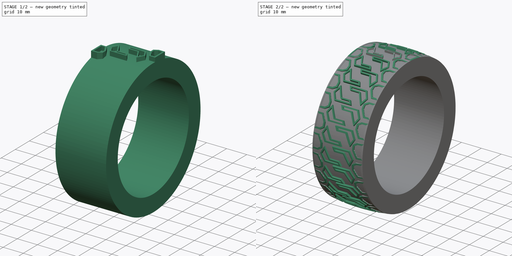
[diagram: build sequence overview — one tinted view per stage of 2, left to right]
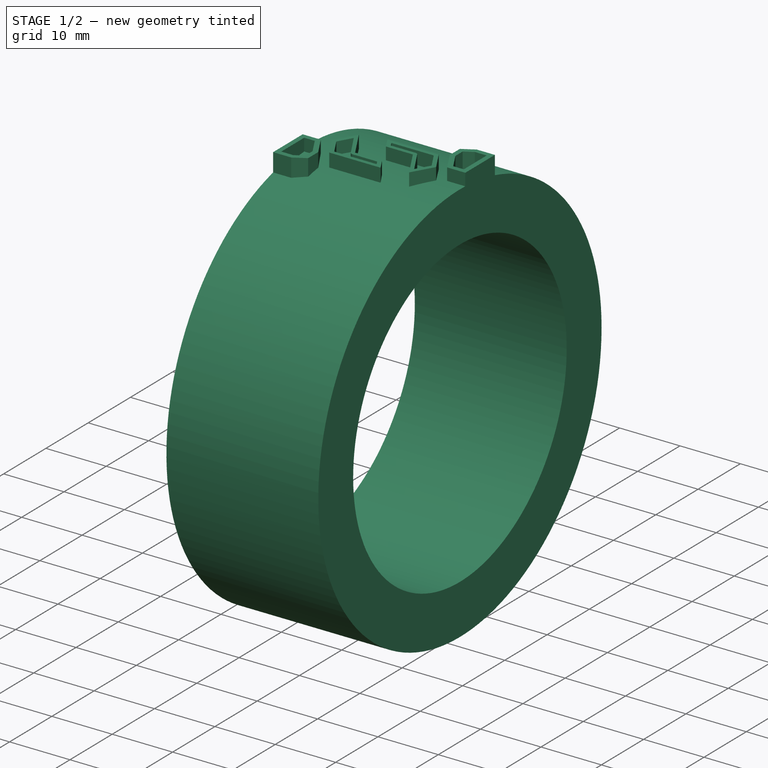
[diagram: stage 1 of 2 — iso view after this stage's code; geometry added in this stage tinted green]
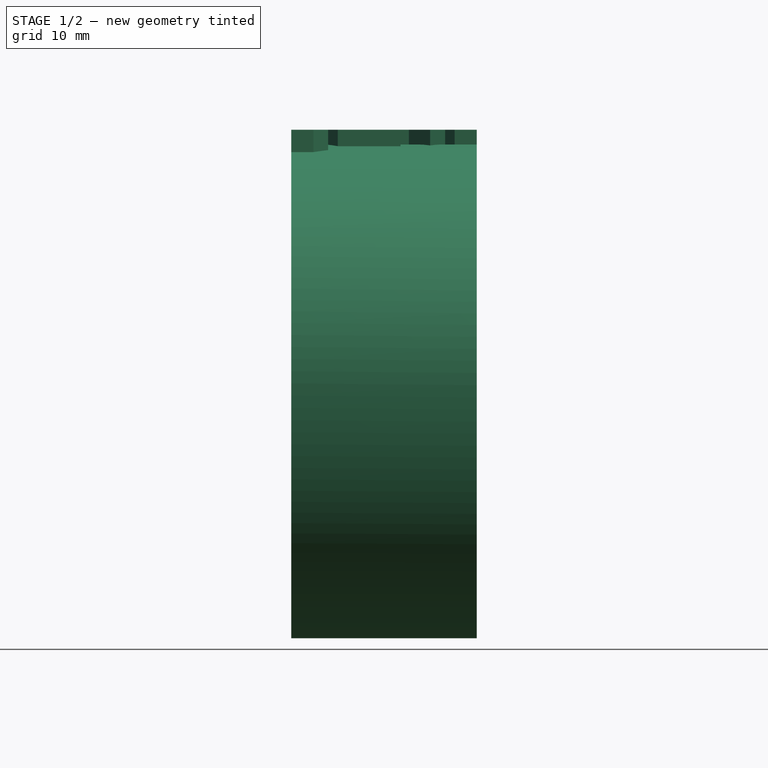
[diagram: stage 1 of 2 — front view after this stage's code; geometry added in this stage tinted green]
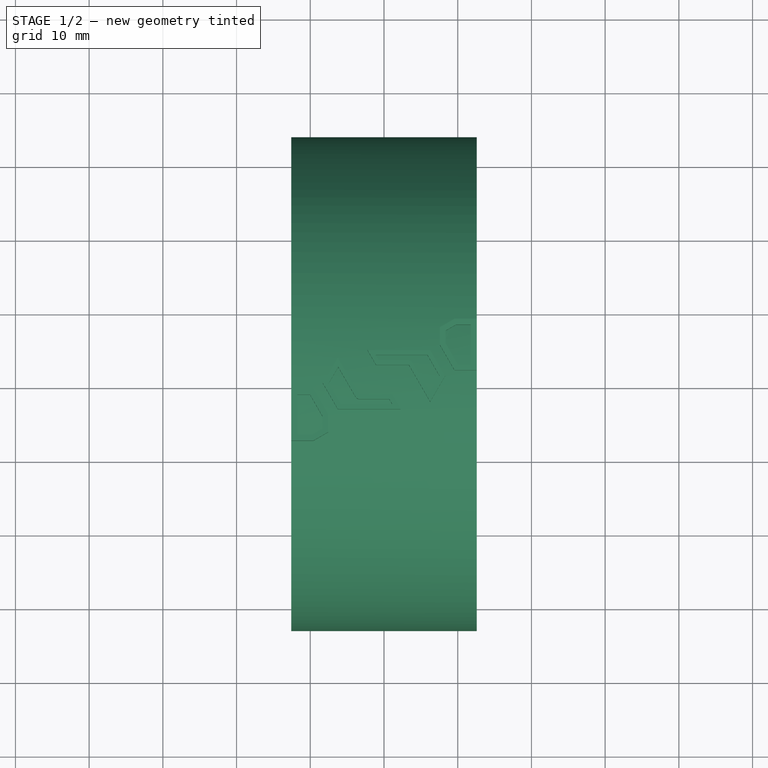
[diagram: stage 1 of 2 — top view after this stage's code; geometry added in this stage tinted green]
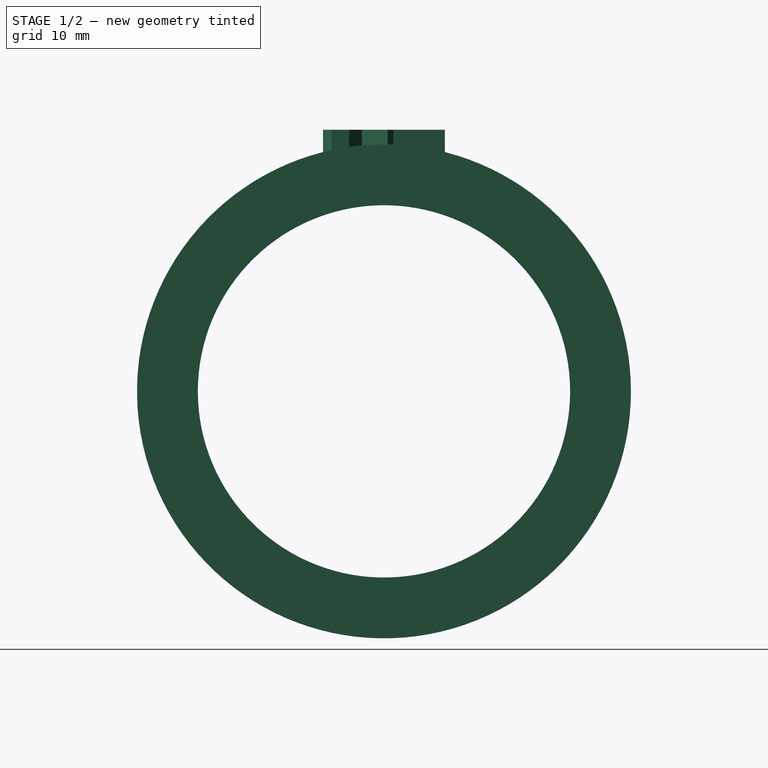
[diagram: stage 1 of 2 — right view after this stage's code; geometry added in this stage tinted green]
FCSTD DOCUMENT  (FreeCAD 1.0R39109 (Git))
Label: neumatic
License: All rights reserved
LicenseURL: http://en.wikipedia.org/wiki/All_rights_reserved
objects: Sketcher::SketchObject×4, PartDesign::Pad×2, PartDesign::Plane×1, PartDesign::PolarPattern×1, PartDesign::Groove×1, PartDesign::Body×1
note: 21 computed .brp shape members not serialized (recipe doc carries the construction recipe); baked Part::Feature solids carry a one-line shape summary decoded from their .brp

FEATURE [Sketcher::SketchObject] Sketch
  ArcFitTolerance = 1e-06
  AttachmentSupport = -> [YZ_Plane]
  FullyConstrained = true
  MakeInternals = false
  MapMode = 5
  Placement = pos=(0,0,0) rot=(0.57735,0.57735,0.57735;2.0944rad)
  sketch-geometry (2):
    g0: Circle CenterX=0 CenterY=0 CenterZ=0 NormalX=0 NormalY=0 NormalZ=1 AngleXU=0 Radius=33.5
    g1: Circle CenterX=0 CenterY=0 CenterZ=0 NormalX=0 NormalY=0 NormalZ=1 AngleXU=0 Radius=25.25
  constraints (4):
    c: Coincident(g0,g-1)
    c: Coincident(g1,g0)
    c: Radius(g1) = 25.25
    c: Radius(g0) = 33.5
FEATURE [PartDesign::Pad] Pad  label="BasePad"
  Direction = (1,0,0)
  Length = 12.575
  Length2 = 12.575
  Placement = pos=(0,0,0) rot=(1,1,1;2.0944rad)
  Profile = -> Sketch
  ReferenceAxis = -> Sketch [N_Axis]
  Refine = true
  Suppressed = false
  Type = 4
FEATURE [Sketcher::SketchObject] Sketch001
  ArcFitTolerance = 1e-06
  AttachmentSupport = -> [Pad]
  ExternalGeometry = -> [Pad]
  FullyConstrained = true
  MakeInternals = false
  MapMode = 5
  Placement = pos=(12.575,0,0) rot=(0.57735,0.57735,0.57735;2.0944rad)
  sketch-geometry (1):
    g0: LineSegment StartX=0 StartY=0 StartZ=0 EndX=0 EndY=33.5 EndZ=0
  constraints (3):
    c: Coincident(g0,g-1)
    c: PointOnObject(g0,g-4)
    c: Vertical(g0)
FEATURE [PartDesign::Plane] DatumPlane
  AttachmentSupport = -> [XY_Plane,Sketch001]
  Length = 61.7362
  MapMode = 53
  Placement = pos=(0,0,33.5) rot=(0,0,1;0rad)
  ResizeMode = 0
  Width = 80.6059
FEATURE [Sketcher::SketchObject] Sketch002
  ArcFitTolerance = 1e-06
  AttachmentSupport = -> [DatumPlane]
  ExternalGeometry = -> [Pad]
  FullyConstrained = false
  MakeInternals = false
  MapMode = 5
  Placement = pos=(0,0,33.5) rot=(0,0,1;0rad)
  sketch-geometry (56):
    g0: LineSegment StartX=2.2344 StartY=-4 StartZ=0 EndX=-6.2656 EndY=-4 EndZ=0
    g1: LineSegment StartX=-6.2656 StartY=-4 StartZ=0 EndX=-8.28632 EndY=-0.5 EndZ=0
    g2: LineSegment StartX=-8.28632 StartY=-0.5 StartZ=0 EndX=-6.2656 EndY=3 EndZ=0
    g3: LineSegment StartX=-6.2656 StartY=3 StartZ=0 EndX=-3.37885 EndY=-2 EndZ=0
    g4: LineSegment StartX=-3.37885 StartY=-2 StartZ=0 EndX=1.0797 EndY=-2 EndZ=0
    g5: LineSegment StartX=1.0797 StartY=-2 StartZ=0 EndX=2.2344 EndY=-4 EndZ=0
    g6: LineSegment StartX=-12.575 StartY=-1.26795 StartZ=0 EndX=-9.575 EndY=-1.26795 EndZ=0
    g7: LineSegment StartX=-9.575 StartY=-8.26795 StartZ=0 EndX=-12.575 EndY=-8.26795 EndZ=0
    g8: LineSegment StartX=-12.575 StartY=-8.26795 StartZ=0 EndX=-12.575 EndY=-1.26795 EndZ=0
    g9: LineSegment StartX=-9.575 StartY=-1.26795 StartZ=0 EndX=-7.575 EndY=-4.73205 EndZ=0
    g10: LineSegment StartX=-7.575 StartY=-4.73205 StartZ=0 EndX=-7.575 EndY=-7.11325 EndZ=0
    g11: LineSegment StartX=-7.575 StartY=-7.11325 StartZ=0 EndX=-9.575 EndY=-8.26795 EndZ=0
    g12: GeomPoint X=-8.575 Y=-3 Z=0
    g13: GeomPoint X=-7.27596 Y=-2.25 Z=0
    g14: LineSegment [constr] StartX=-8.575 StartY=-3 StartZ=0 EndX=-7.27596 EndY=-2.25 EndZ=0
    g15: LineSegment StartX=-8.365 StartY=-6.65811 StartZ=0 EndX=-9.785 EndY=-7.47795 EndZ=0
    g16: LineSegment StartX=-9.785 StartY=-7.47795 StartZ=0 EndX=-11.775 EndY=-7.47795 EndZ=0
    g17: LineSegment StartX=-11.775 StartY=-7.47795 StartZ=0 EndX=-11.775 EndY=-2.05795 EndZ=0
    g18: LineSegment StartX=-11.775 StartY=-2.05795 StartZ=0 EndX=-10.025 EndY=-2.05795 EndZ=0
    g19: LineSegment StartX=-10.025 StartY=-2.05795 StartZ=0 EndX=-8.365 EndY=-4.93315 EndZ=0
    g20: LineSegment StartX=-8.365 StartY=-4.93315 StartZ=0 EndX=-8.365 EndY=-6.65811 EndZ=0
    g21: LineSegment StartX=-5.8856 StartY=-3.36 StartZ=0 EndX=-7.5156 EndY=-0.536757 EndZ=0
    g22: LineSegment StartX=-7.5156 StartY=-0.536757 StartZ=0 EndX=-6.21015 EndY=1.72434 EndZ=0
    g23: LineSegment StartX=-6.21015 StartY=1.72434 StartZ=0 EndX=-3.87515 EndY=-2.32 EndZ=0
    g24: ArcOfCircle CenterX=-3.3209 CenterY=-2 CenterZ=0 NormalX=0 NormalY=0 NormalZ=1 AngleXU=2.0944 Radius=0.64 StartAngle=1.5708 EndAngle=2.61799
    g25: LineSegment StartX=-3.3209 StartY=-2.64 StartZ=0 EndX=0.718709 EndY=-2.64 EndZ=0
    g26: LineSegment StartX=0.718709 StartY=-2.64 StartZ=0 EndX=1.1344 EndY=-3.36 EndZ=0
    g27: LineSegment StartX=1.1344 StartY=-3.36 StartZ=0 EndX=-5.8856 EndY=-3.36 EndZ=0
    g28: LineSegment StartX=-2.2344 StartY=4 StartZ=0 EndX=6.2656 EndY=4 EndZ=0
    g29: LineSegment StartX=6.2656 StartY=4 StartZ=0 EndX=8.28632 EndY=0.5 EndZ=0
    g30: LineSegment StartX=8.28632 StartY=0.5 StartZ=0 EndX=6.2656 EndY=-3 EndZ=0
    g31: LineSegment StartX=6.2656 StartY=-3 StartZ=0 EndX=3.37885 EndY=2 EndZ=0
    g32: LineSegment StartX=3.37885 StartY=2 StartZ=0 EndX=-1.0797 EndY=2 EndZ=0
    g33: LineSegment StartX=-1.0797 StartY=2 StartZ=0 EndX=-2.2344 EndY=4 EndZ=0
    g34: LineSegment StartX=12.575 StartY=1.26795 StartZ=0 EndX=9.575 EndY=1.26795 EndZ=0
    g35: LineSegment StartX=9.575 StartY=8.26795 StartZ=0 EndX=12.575 EndY=8.26795 EndZ=0
    g36: LineSegment StartX=12.575 StartY=8.26795 StartZ=0 EndX=12.575 EndY=1.26795 EndZ=0
    g37: LineSegment StartX=9.575 StartY=1.26795 StartZ=0 EndX=7.575 EndY=4.73205 EndZ=0
    g38: LineSegment StartX=7.575 StartY=4.73205 StartZ=0 EndX=7.575 EndY=7.11325 EndZ=0
    g39: LineSegment StartX=7.575 StartY=7.11325 StartZ=0 EndX=9.575 EndY=8.26795 EndZ=0
    g40: GeomPoint X=8.575 Y=3 Z=0
    g41: GeomPoint X=7.27596 Y=2.25 Z=0
    g42: LineSegment [constr] StartX=8.575 StartY=3 StartZ=0 EndX=7.27596 EndY=2.25 EndZ=0
    g43: LineSegment StartX=8.365 StartY=6.65811 StartZ=0 EndX=9.785 EndY=7.47795 EndZ=0
    g44: LineSegment StartX=9.785 StartY=7.47795 StartZ=0 EndX=11.775 EndY=7.47795 EndZ=0
    g45: LineSegment StartX=11.775 StartY=7.47795 StartZ=0 EndX=11.775 EndY=2.05795 EndZ=0
    g46: LineSegment StartX=11.775 StartY=2.05795 StartZ=0 EndX=10.025 EndY=2.05795 EndZ=0
    g47: LineSegment StartX=10.025 StartY=2.05795 StartZ=0 EndX=8.365 EndY=4.93315 EndZ=0
    g48: LineSegment StartX=8.365 StartY=4.93315 StartZ=0 EndX=8.365 EndY=6.65811 EndZ=0
    g49: LineSegment StartX=5.8856 StartY=3.36 StartZ=0 EndX=7.5156 EndY=0.536757 EndZ=0
    g50: LineSegment StartX=7.5156 StartY=0.536757 StartZ=0 EndX=6.21015 EndY=-1.72434 EndZ=0
    g51: LineSegment StartX=6.21015 StartY=-1.72434 StartZ=0 EndX=3.87515 EndY=2.32 EndZ=0
    g52: ArcOfCircle CenterX=3.3209 CenterY=2 CenterZ=0 NormalX=0 NormalY=0 NormalZ=1 AngleXU=2.0944 Radius=0.64 StartAngle=4.71239 EndAngle=5.75959
    g53: LineSegment StartX=3.3209 StartY=2.64 StartZ=0 EndX=-0.718709 EndY=2.64 EndZ=0
    g54: LineSegment StartX=-0.718709 StartY=2.64 StartZ=0 EndX=-1.1344 EndY=3.36 EndZ=0
    g55: LineSegment StartX=-1.1344 StartY=3.36 StartZ=0 EndX=5.8856 EndY=3.36 EndZ=0
  constraints (136):
    c: Horizontal(g0)
    c: Coincident(g0,g1)
    c: Coincident(g1,g2)
    c: Coincident(g2,g3)
    c: Coincident(g3,g4)
    c: Horizontal(g4)
    c: Coincident(g4,g5)
    c: Coincident(g5,g0)
    c: Horizontal(g6)
    c: Horizontal(g7)
    c: Coincident(g7,g8)
    c: Coincident(g8,g6)
    c: Vertical(g8)
    c: PointOnObject(g6,g-3)
    c: DistanceY(g8,g8) = 7
    c: Vertical(g7,g6)
    c: Coincident(g6,g9)
    c: Coincident(g9,g10)
    c: Coincident(g10,g11)
    c: Coincident(g11,g7)
    c: Vertical(g10)
    c: Angle(g6,g9) = 2.0944
    c: Angle(g11,g7) = 2.61799
    c: DistanceX(g7,g7) = 3
    c: Symmetric(g9,g9,g12)
    c: Symmetric(g1,g1,g13)
    c: Parallel(g1,g9)
    c: Coincident(g14,g12)
    c: Coincident(g14,g13)
    c: Perpendicular(g9,g14)
    c: Distance(g14) = 1.5
    c: Parallel(g3,g1)
    c: Angle(g1,g2) = 2.0944
    c: Angle(g5,g0) = 1.0472
    c: DistanceX(g0,g0) = 8.5
    c: DistanceY(g0,g2) = 7
    c: DistanceX(g7,g10) = 2
    c: Vertical(g0,g2)
    c: DistanceY(g0,g4) = 2
    c: DistanceY(g1,g-1) = 0.5
    c: Coincident(g15,g16)
    c: Coincident(g15,g20)
    c: Coincident(g16,g17)
    c: Coincident(g17,g18)
    c: Coincident(g18,g19)
    c: Coincident(g19,g20)
    c: Coincident(g21,g22)
    c: Coincident(g21,g27)
    c: Coincident(g22,g23)
    c: Tangent(g23,g24) = -1.5708
    c: Tangent(g24,g25) = -1.5708
    c: Coincident(g25,g26)
    c: Coincident(g26,g27)
    c: Parallel(g22,g2)
    c: Parallel(g3,g23)
    c: Parallel(g21,g1)
    c: DistanceX(g27,g27) = 7.02
    c: DistanceY(g0,g26) = 0.64
    c: DistanceY(g26,g25) = 0.72
    c: Parallel(g26,g5)
    c: Horizontal(g25)
    c: Horizontal(g27)
    c: Radius(g24) = 0.64
    c: Distance(g23) = 4.67
    c: Distance(g21) = 3.26
    c: Vertical(g17)
    c: Horizontal(g18)
    c: Horizontal(g16)
    c: Parallel(g15,g11)
    c: Vertical(g20)
    c: Parallel(g19,g9)
    c: DistanceY(g17,g17) = 5.42
    c: DistanceX(g18,g18) = 1.75
    c: DistanceX(g16,g16) = 1.99
    c: DistanceX(g15,g15) = 1.42
    c: DistanceY(g7,g16) = 0.79
    c: DistanceX(g7,g16) = 0.8
    c: DistanceX(g26,g0) = 1.1
    c: Horizontal(g28)
    c: Coincident(g28,g29)
    c: Coincident(g29,g30)
    c: Coincident(g30,g31)
    c: Coincident(g31,g32)
    c: Horizontal(g32)
    c: Coincident(g32,g33)
    c: Coincident(g33,g28)
    c: Horizontal(g34)
    c: Horizontal(g35)
    c: Coincident(g35,g36)
    c: Coincident(g36,g34)
    c: Vertical(g36)
    c: Coincident(g34,g37)
    c: Coincident(g37,g38)
    c: Coincident(g38,g39)
    c: Coincident(g39,g35)
    c: Vertical(g38)
    c: Angle(g34,g37) = 2.0944
    c: Angle(g39,g35) = 2.61799
    c: Symmetric(g37,g37,g40)
    c: Symmetric(g29,g29,g41)
    c: Parallel(g29,g37)
    c: Coincident(g42,g40)
    c: Coincident(g42,g41)
    c: Perpendicular(g37,g42)
    c: Distance(g42) = 1.5
    c: Parallel(g31,g29)
    c: Angle(g29,g30) = 2.0944
    c: Angle(g33,g28) = 1.0472
    c: Coincident(g43,g44)
    c: Coincident(g43,g48)
    c: Coincident(g44,g45)
    c: Coincident(g45,g46)
    c: Coincident(g46,g47)
    c: Coincident(g47,g48)
    c: Coincident(g49,g50)
    c: Coincident(g49,g55)
    c: Coincident(g50,g51)
    c: Tangent(g51,g52) = -1.5708
    c: Tangent(g52,g53) = -1.5708
    c: Coincident(g53,g54)
    c: Coincident(g54,g55)
    c: Parallel(g50,g30)
    c: Parallel(g31,g51)
    c: Parallel(g49,g29)
    c: Parallel(g54,g33)
    c: Horizontal(g53)
    c: Horizontal(g55)
    c: Radius(g52) = 0.64
    c: Distance(g51) = 4.67
    c: Distance(g49) = 3.26
    c: Vertical(g45)
    c: Horizontal(g46)
    c: Horizontal(g44)
    c: Parallel(g43,g39)
    c: Vertical(g48)
    c: Parallel(g47,g37)
FEATURE [PartDesign::Pad] Pad001  label="NeumaticPad"
  BaseFeature = -> Pad
  Direction = (0,0,1)
  Length = 2
  Length2 = 3
  Placement = pos=(0,0,0) rot=(1,1,1;2.0944rad)
  Profile = -> Sketch002
  ReferenceAxis = -> Sketch002 [N_Axis]
  Refine = true
  Suppressed = false
  Type = 4
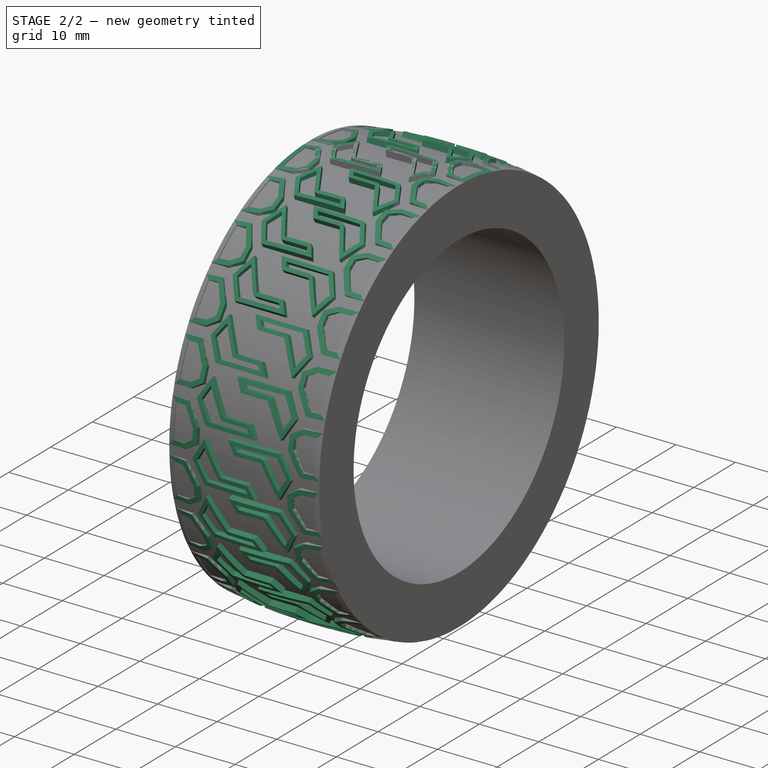
[diagram: stage 2 of 2 — iso view after this stage's code; geometry added in this stage tinted green]
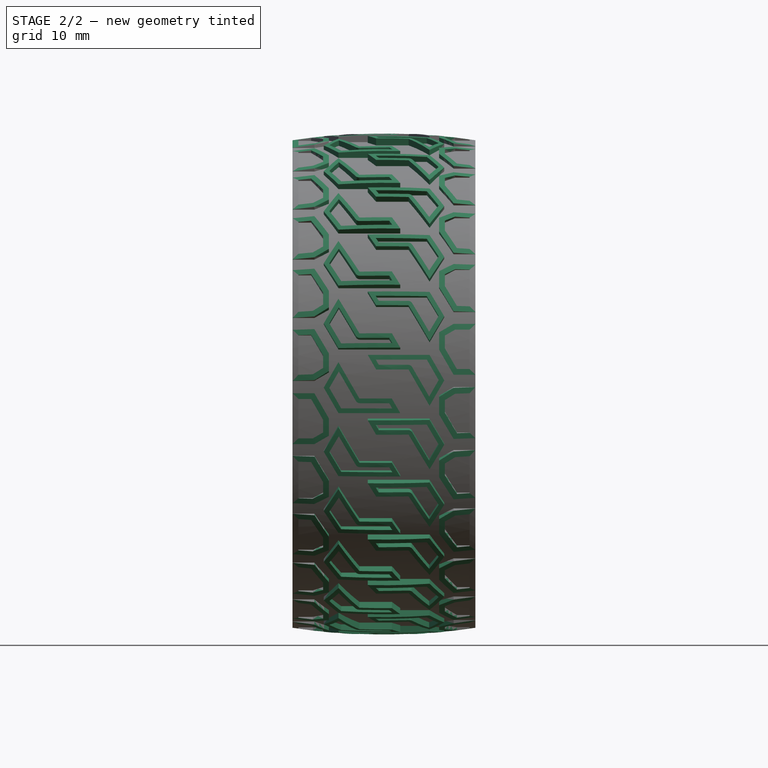
[diagram: stage 2 of 2 — front view after this stage's code; geometry added in this stage tinted green]
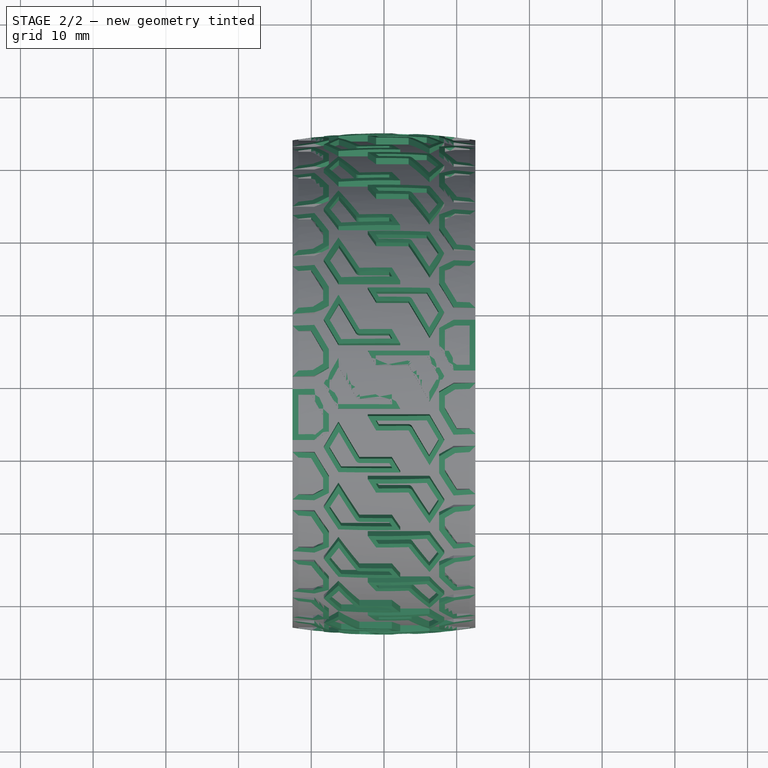
[diagram: stage 2 of 2 — top view after this stage's code; geometry added in this stage tinted green]
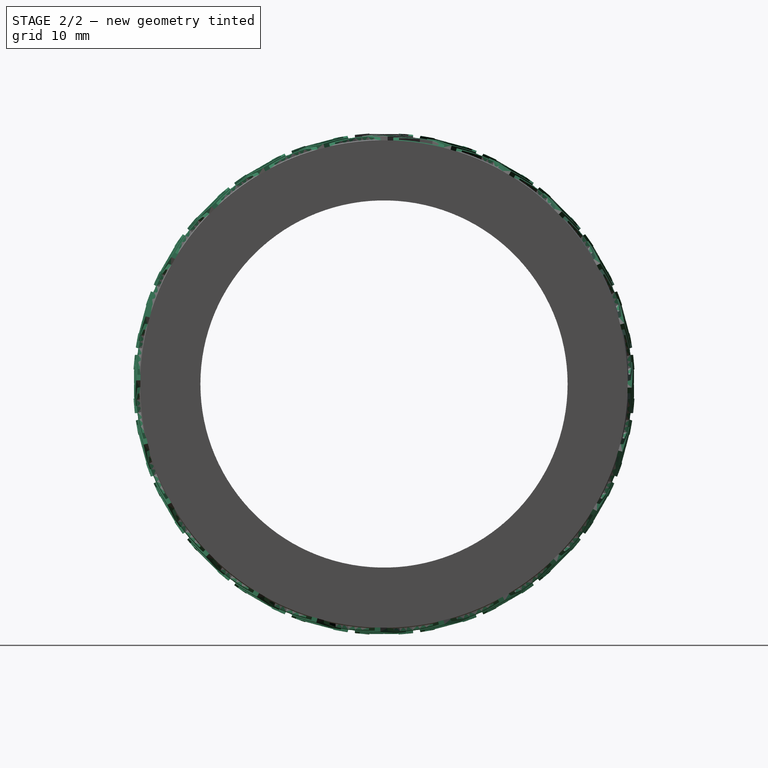
[diagram: stage 2 of 2 — right view after this stage's code; geometry added in this stage tinted green]
FEATURE [PartDesign::PolarPattern] PolarPattern  label="NuematicPattern"
  Angle = 360
  Axis = -> X_Axis
  BaseFeature = -> Pad001
  Mode = 0
  Occurrences = 24
  Offset = 120
  Originals = -> [Pad001]
  Placement = pos=(0,0,0) rot=(1,1,1;2.0944rad)
  Refine = true
  Suppressed = false
  TransformMode = 0
FEATURE [Sketcher::SketchObject] Sketch003
  ArcFitTolerance = 1e-06
  AttachmentSupport = -> [XZ_Plane]
  ExternalGeometry = -> [Sketch]
  FullyConstrained = true
  MakeInternals = false
  MapMode = 5
  Placement = pos=(0,0,0) rot=(1,0,0;1.5708rad)
  sketch-geometry (5):
    g0: ArcOfCircle CenterX=-9.5e-15 CenterY=-47.2813 CenterZ=0 NormalX=0 NormalY=0 NormalZ=1 AngleXU=0 Radius=81.7813 StartAngle=1.41425 EndAngle=1.72734
    g1: LineSegment StartX=-12.75 StartY=33.5 StartZ=0 EndX=-12.75 EndY=37.5 EndZ=0
    g2: LineSegment StartX=-12.75 StartY=37.5 StartZ=0 EndX=12.75 EndY=37.5 EndZ=0
    g3: LineSegment StartX=12.75 StartY=37.5 StartZ=0 EndX=12.75 EndY=33.5 EndZ=0
    g4: GeomPoint X=0 Y=34.5 Z=0
  constraints (14):
    c: Coincident(g0,g1)
    c: Coincident(g1,g2)
    c: Horizontal(g2)
    c: Coincident(g2,g3)
    c: Coincident(g3,g0)
    c: Vertical(g3)
    c: Vertical(g1)
    c: Horizontal(g0,g-3)
    c: PointOnObject(g4,g0)
    c: PointOnObject(g4,g-2)
    c: DistanceY(g0,g4) = 1
    c: Symmetric(g0,g0,g-3)
    c: DistanceX(g2,g2) = 25.5
    c: DistanceY(g3,g3) = 4
FEATURE [PartDesign::Groove] Groove  label="FinalGroove"
  Angle = 360
  Angle2 = 60
  Axis = (1,0,0)
  Base = (0,0,0)
  BaseFeature = -> PolarPattern
  Placement = pos=(0,0,0) rot=(1,1,1;2.0944rad)
  Profile = -> Sketch003
  ReferenceAxis = -> X_Axis
  Refine = true
  Reversed = true
  Suppressed = false
  Type = 0
FEATURE [PartDesign::Body] Body  label="Neumatic"
  AllowCompound = false
  Group = -> [Sketch,Pad,Sketch001,DatumPlane,Sketch002,Pad001,PolarPattern,Sketch003,Groove]
  Origin = -> Origin
  Tip = -> Groove
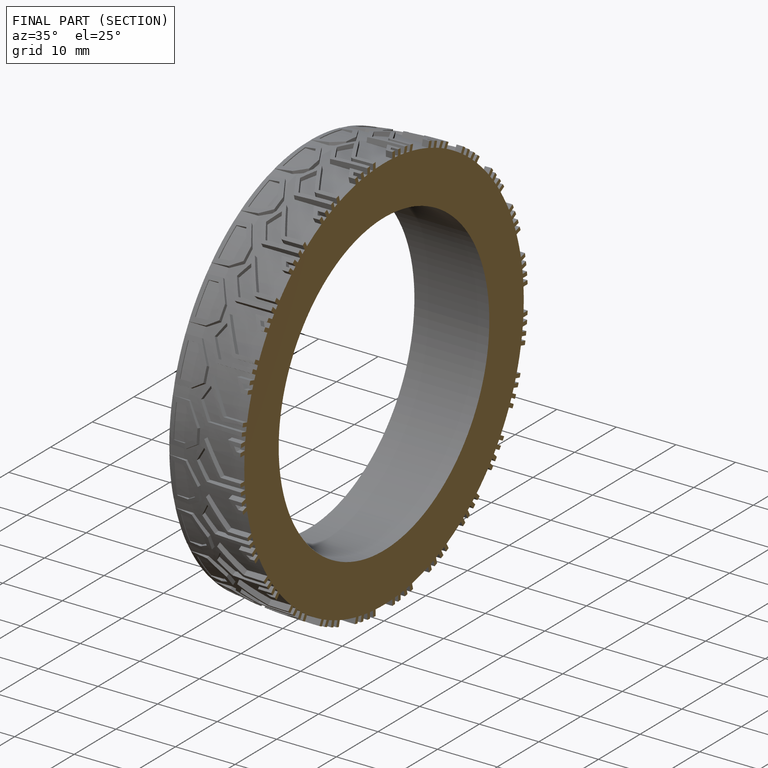
[diagram: finished part — half-section view (interior)]
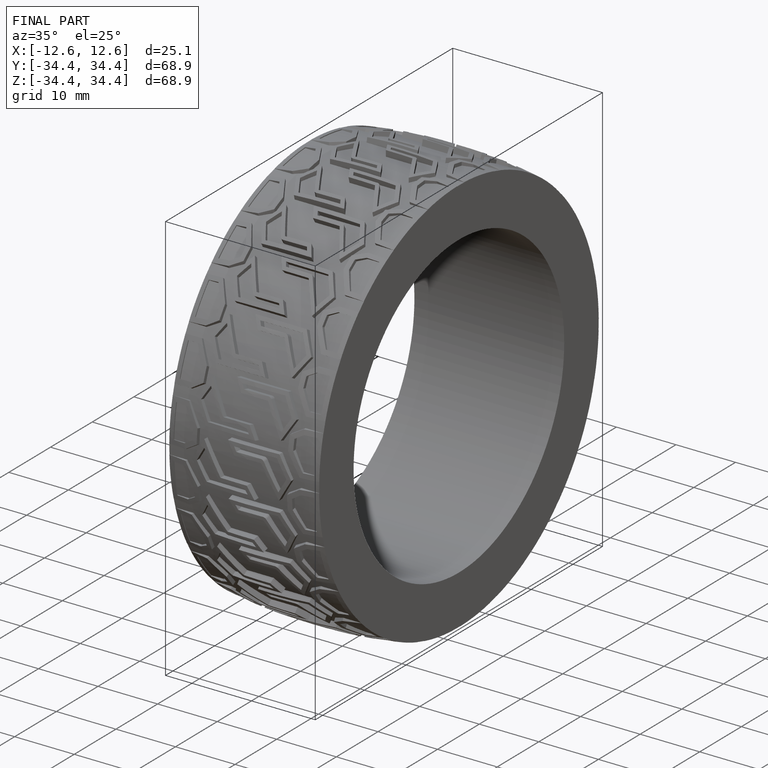
[diagram: finished part — iso view with bounding-box wireframe]
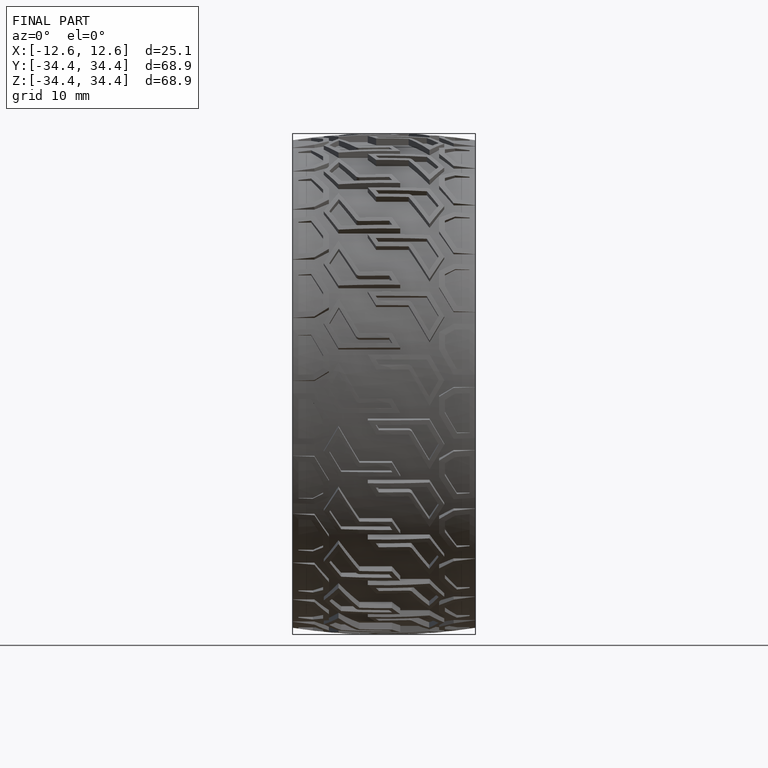
[diagram: finished part — front view with bounding-box wireframe]
